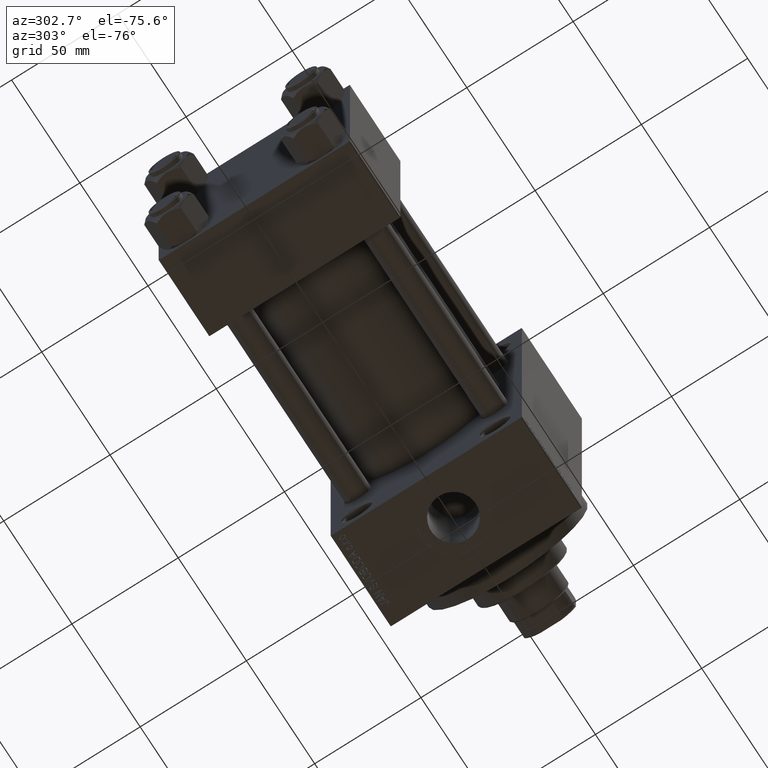
[diagram: clean part render]
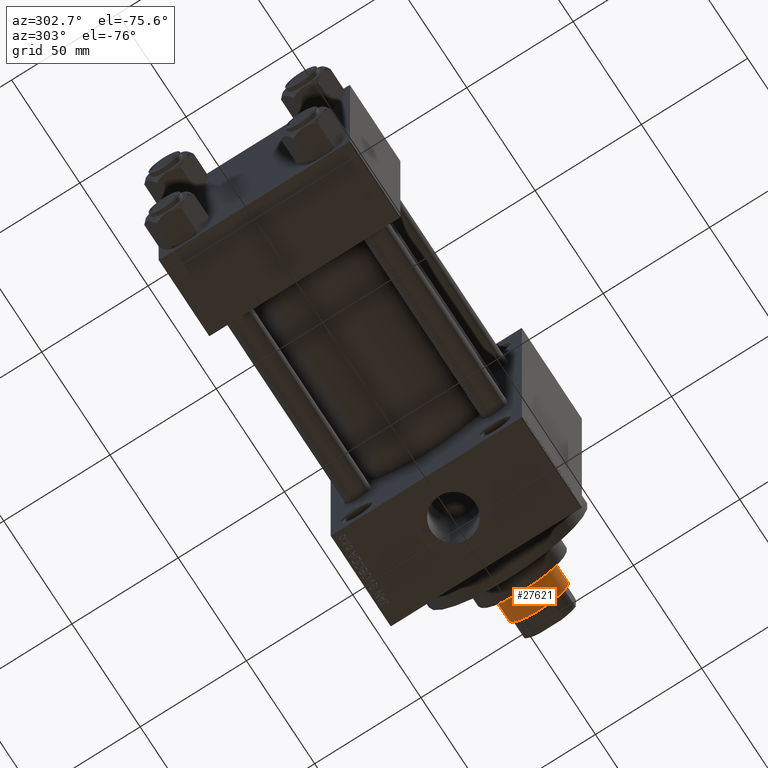
[diagram: same view with one face highlighted and labeled with its STEP entity id]
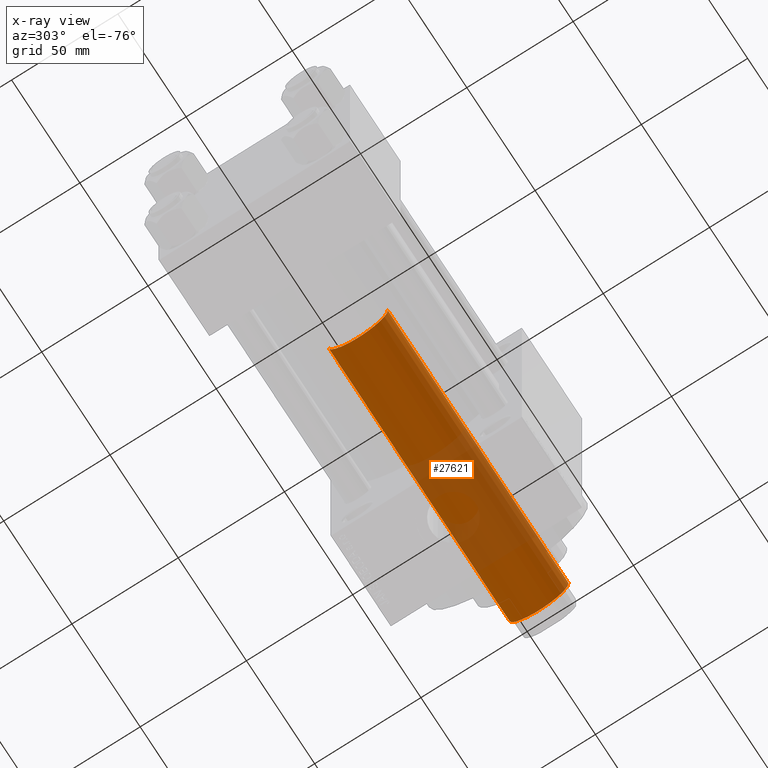
[diagram: x-ray of the same camera — body ghosted, the highlighted face saturated]
A machine part, auxiliary view. The second image highlights one B-rep face of the part: STEP entity #27621.
The next image is the same camera in x-ray: the body ghosted, the highlighted face saturated — about 34% of this face is hidden behind the body in this view.
In plain terms, the highlighted cylindrical surface (edge-blend (fillet) strip) has radius 14 mm, axis along (-1, 0, 0).
Its self-contained STEP definition (entity closure, byte-faithful):
#1088 = EDGE_LOOP ( 'NONE', ( #5660, #47087, #35101, #12766 ) ) ;
#1360 = CIRCLE ( 'NONE', #3733, 14.00000000000000178 ) ;
#1562 = CARTESIAN_POINT ( 'NONE',  ( 0.000000000000000000, 0.000000000000000000, 39.00000000000000000 ) ) ;
#2575 = DIRECTION ( 'NONE',  ( -1.000000000000000000, 0.000000000000000000, 0.000000000000000000 ) ) ;
#3733 = AXIS2_PLACEMENT_3D ( 'NONE', #1562, #24931, #9029 ) ;
#5291 = VERTEX_POINT ( 'NONE', #47658 ) ;
#5660 = ORIENTED_EDGE ( 'NONE', *, *, #30103, .T. ) ;
#6645 = CIRCLE ( 'NONE', #22535, 14.00000000000000178 ) ;
#7706 = CARTESIAN_POINT ( 'NONE',  ( -14.00000000000000178, 0.000000000000000000, 39.00000000000000000 ) ) ;
#9029 = DIRECTION ( 'NONE',  ( 1.000000000000000000, 0.000000000000000000, 0.000000000000000000 ) ) ;
#12766 = ORIENTED_EDGE ( 'NONE', *, *, #15516, .F. ) ;
#15516 = EDGE_CURVE ( 'NONE', #35508, #39007, #38853, .T. ) ;
#17370 = DIRECTION ( 'NONE',  ( -0.000000000000000000, -0.000000000000000000, -1.000000000000000000 ) ) ;
#17828 = VECTOR ( 'NONE', #35635, 1000.000000000000000 ) ;
#18817 = EDGE_CURVE ( 'NONE', #5291, #44408, #32758, .T. ) ;
#22535 = AXIS2_PLACEMENT_3D ( 'NONE', #36375, #25196, #47545 ) ;
#24931 = DIRECTION ( 'NONE',  ( 0.000000000000000000, 0.000000000000000000, 1.000000000000000000 ) ) ;
#24977 = FACE_OUTER_BOUND ( 'NONE', #1088, .T. ) ;
#25196 = DIRECTION ( 'NONE',  ( 0.000000000000000000, 0.000000000000000000, -1.000000000000000000 ) ) ;
#25225 = CARTESIAN_POINT ( 'NONE',  ( 0.000000000000000000, 0.000000000000000000, 172.0000000000000000 ) ) ;
#25297 = EDGE_CURVE ( 'NONE', #44408, #39007, #1360, .T. ) ;
#25778 = VECTOR ( 'NONE', #17370, 1000.000000000000000 ) ;
#27621 = ADVANCED_FACE ( 'NONE', ( #24977 ), #40119, .T. ) ;
#30103 = EDGE_CURVE ( 'NONE', #35508, #5291, #6645, .T. ) ;
#30805 = AXIS2_PLACEMENT_3D ( 'NONE', #25225, #37124, #2575 ) ;
#32758 = LINE ( 'NONE', #44923, #25778 ) ;
#33843 = CARTESIAN_POINT ( 'NONE',  ( 14.00000000000000178, 1.714505518806294835E-15, 39.00000000000000000 ) ) ;
#35101 = ORIENTED_EDGE ( 'NONE', *, *, #25297, .T. ) ;
#35508 = VERTEX_POINT ( 'NONE', #40784 ) ;
#35635 = DIRECTION ( 'NONE',  ( -0.000000000000000000, -0.000000000000000000, -1.000000000000000000 ) ) ;
#36375 = CARTESIAN_POINT ( 'NONE',  ( 0.000000000000000000, 0.000000000000000000, 171.5000000000000284 ) ) ;
#37124 = DIRECTION ( 'NONE',  ( -0.000000000000000000, -0.000000000000000000, -1.000000000000000000 ) ) ;
#38853 = LINE ( 'NONE', #39599, #17828 ) ;
#39007 = VERTEX_POINT ( 'NONE', #7706 ) ;
#39599 = CARTESIAN_POINT ( 'NONE',  ( -14.00000000000000178, 0.000000000000000000, 172.0000000000000000 ) ) ;
#40119 = CYLINDRICAL_SURFACE ( 'NONE', #30805, 14.00000000000000178 ) ;
#40784 = CARTESIAN_POINT ( 'NONE',  ( -14.00000000000000178, 0.000000000000000000, 171.5000000000000284 ) ) ;
#44408 = VERTEX_POINT ( 'NONE', #33843 ) ;
#44923 = CARTESIAN_POINT ( 'NONE',  ( 14.00000000000000178, 1.714505518806294835E-15, 172.0000000000000000 ) ) ;
#47087 = ORIENTED_EDGE ( 'NONE', *, *, #18817, .T. ) ;
#47545 = DIRECTION ( 'NONE',  ( 1.000000000000000000, 0.000000000000000000, 0.000000000000000000 ) ) ;
#47658 = CARTESIAN_POINT ( 'NONE',  ( 14.00000000000000178, 1.714505518806294835E-15, 171.5000000000000284 ) ) ;